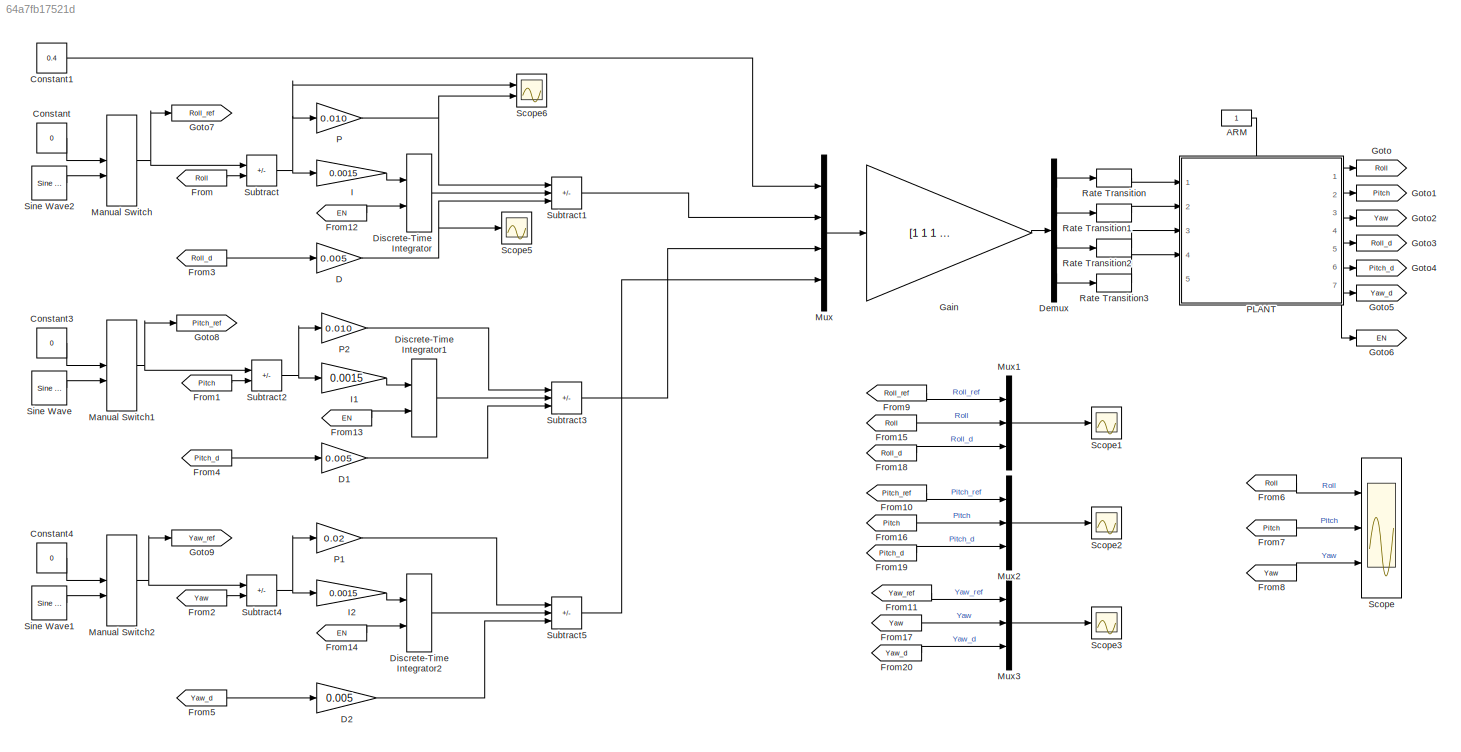
MODEL slx_64a7fb17521d
KIND model
CONFIG AbsTol = auto
CONFIG EnableMultiTasking = on
CONFIG FixedStep = auto
CONFIG MaxStep = auto
CONFIG MinStep = auto
CONFIG RelTol = 1e-3
CONFIG SampleTimeConstraint = Unconstrained
CONFIG SolverName = FixedStepAuto
CONFIG StartTime = 0.0
CONFIG StopTime = inf
BLOCK [Constant] ARM
  OutDataTypeStr = boolean
BLOCK [Constant] Constant
  SampleTime = 1/100
  Value = 0
BLOCK [Constant] Constant1
  SampleTime = 1/100
  Value = 0.4
BLOCK [Constant] Constant3
  SampleTime = 1/100
  Value = 0
BLOCK [Constant] Constant4
  SampleTime = 1/100
  Value = 0
BLOCK [Gain] D
  Gain = 0.005
BLOCK [Gain] D1
  Gain = 0.005
BLOCK [Gain] D2
  Gain = 0.005
BLOCK [Demux] Demux
  Ports = [1, 4]
BLOCK [DiscreteIntegrator] Discrete-Time Integrator
  ExternalReset = rising
  ICPrevOutput = DiscIntNeverNeededParam
  ICPrevScaledInput = DiscIntNeverNeededParam
  InitialConditionSetting = Auto
  Ports = [2, 1]
  SampleTime = -1
BLOCK [DiscreteIntegrator] Discrete-Time Integrator1
  ExternalReset = rising
  ICPrevOutput = DiscIntNeverNeededParam
  ICPrevScaledInput = DiscIntNeverNeededParam
  InitialConditionSetting = Auto
  Ports = [2, 1]
  SampleTime = -1
BLOCK [DiscreteIntegrator] Discrete-Time Integrator2
  ExternalReset = rising
  ICPrevOutput = DiscIntNeverNeededParam
  ICPrevScaledInput = DiscIntNeverNeededParam
  InitialConditionSetting = Auto
  Ports = [2, 1]
  SampleTime = -1
BLOCK [From] From
  GotoTag = Roll
BLOCK [From] From1
  GotoTag = Pitch
BLOCK [From] From10
  GotoTag = Pitch_ref
BLOCK [From] From11
  GotoTag = Yaw_ref
BLOCK [From] From12
  GotoTag = EN
BLOCK [From] From13
  GotoTag = EN
BLOCK [From] From14
  GotoTag = EN
BLOCK [From] From15
  GotoTag = Roll
BLOCK [From] From16
  GotoTag = Pitch
BLOCK [From] From17
  GotoTag = Yaw
BLOCK [From] From18
  GotoTag = Roll_d
BLOCK [From] From19
  GotoTag = Pitch_d
BLOCK [From] From2
  GotoTag = Yaw
BLOCK [From] From20
  GotoTag = Yaw_d
BLOCK [From] From3
  GotoTag = Roll_d
BLOCK [From] From4
  GotoTag = Pitch_d
BLOCK [From] From5
  GotoTag = Yaw_d
BLOCK [From] From6
  GotoTag = Roll
BLOCK [From] From7
  GotoTag = Pitch
BLOCK [From] From8
  GotoTag = Yaw
BLOCK [From] From9
  GotoTag = Roll_ref
BLOCK [Gain] Gain
  Gain = [1 1 1 1;  1 -1 -1 1; 1 1 -1 -1; -1 1 -1 1]'
  Multiplication = Matrix(K*u)
BLOCK [Goto] Goto
  GotoTag = Roll
BLOCK [Goto] Goto1
  GotoTag = Pitch
BLOCK [Goto] Goto2
  GotoTag = Yaw
BLOCK [Goto] Goto3
  GotoTag = Roll_d
BLOCK [Goto] Goto4
  GotoTag = Pitch_d
BLOCK [Goto] Goto5
  GotoTag = Yaw_d
BLOCK [Goto] Goto6
  GotoTag = EN
BLOCK [Goto] Goto7
  GotoTag = Roll_ref
BLOCK [Goto] Goto8
  GotoTag = Pitch_ref
BLOCK [Goto] Goto9
  GotoTag = Yaw_ref
BLOCK [Gain] I
  Gain = 0.0015
BLOCK [Gain] I1
  Gain = 0.0015
BLOCK [Gain] I2
  Gain = 0.0015
BLOCK [ManualSwitch] Manual Switch
BLOCK [ManualSwitch] Manual Switch1
BLOCK [ManualSwitch] Manual Switch2
BLOCK [Mux] Mux
  DisplayOption = bar
  Ports = [4, 1]
BLOCK [Mux] Mux1
  DisplayOption = bar
  Inputs = 3
  Ports = [3, 1]
BLOCK [Mux] Mux2
  DisplayOption = bar
  Inputs = 3
  Ports = [3, 1]
BLOCK [Mux] Mux3
  DisplayOption = bar
  Inputs = 3
  Ports = [3, 1]
BLOCK [Gain] P
  Gain = 0.010
BLOCK [Gain] P1
  Gain = 0.02
BLOCK [Gain] P2
  Gain = 0.010
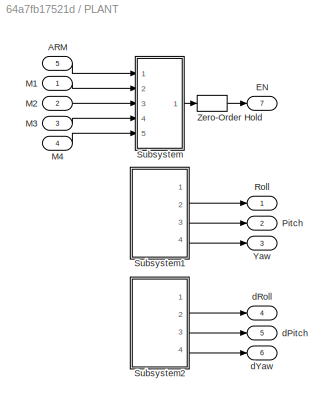
BLOCK [SubSystem] PLANT
  PortSchema = {"entries":[{"content":{"sides":[{"content":{"connectorIds":["In1","In2","In3","In4"]},"type":"ConnectorPlacement.EquallySpacedRectSide","uuid":"0819245d-16ff-4e8e-bda0-1b474f684948"},{"content":{"connectorIds":["Out1","Out2","Out3","Out4","Out5","Out6"],"side":"RIGHT"},"type":"ConnectorPlacement.EquallySpacedRectSide","uuid":"5623580e-83d4-444f-b3d8-3c3f4916fe9f"},{"content":{"connectorIds":["In5...<+592ch>
  Ports = [5, 7]
  RequestExecContextInheritance = off
BLOCK [Inport] PLANT/ARM
  NameLocation = left
  Port = 5
BLOCK [Outport] PLANT/EN
  NameLocation = right
  Port = 7
BLOCK [Inport] PLANT/M1
  NameLocation = left
BLOCK [Inport] PLANT/M2
  NameLocation = left
  Port = 2
BLOCK [Inport] PLANT/M3
  NameLocation = left
  Port = 3
BLOCK [Inport] PLANT/M4
  NameLocation = left
  Port = 4
BLOCK [Outport] PLANT/Pitch
  NameLocation = right
  Port = 2
BLOCK [Outport] PLANT/Roll
  NameLocation = right
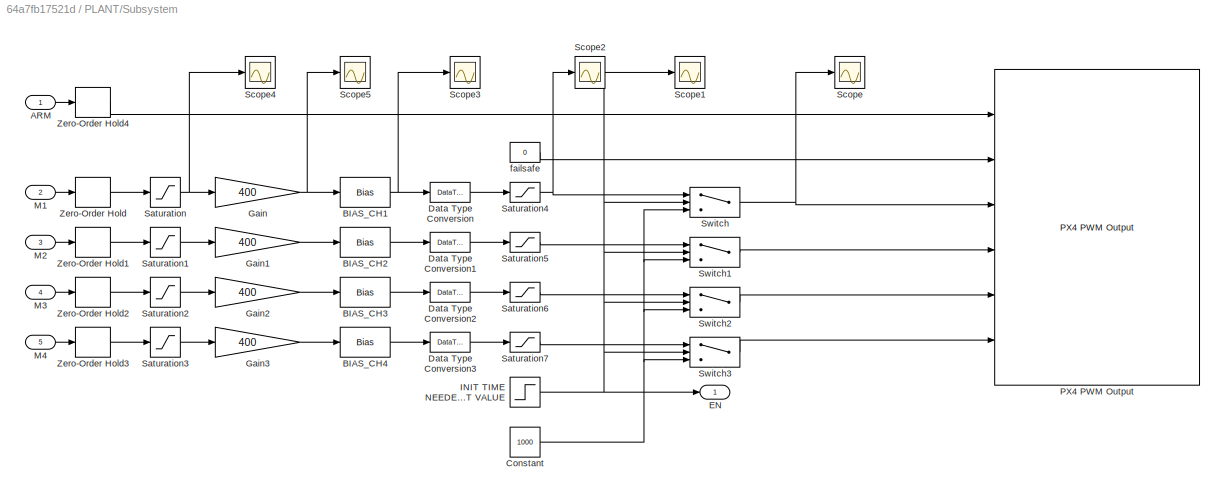
BLOCK [SubSystem] PLANT/Subsystem
  Ports = [5, 1]
  RequestExecContextInheritance = off
BLOCK [Inport] PLANT/Subsystem/ARM
BLOCK [Bias] PLANT/Subsystem/BIAS_CH1
  Bias = 1060
  SaturateOnIntegerOverflow = off
BLOCK [Bias] PLANT/Subsystem/BIAS_CH2
  Bias = 1060
  SaturateOnIntegerOverflow = off
BLOCK [Bias] PLANT/Subsystem/BIAS_CH3
  Bias = 1060
  SaturateOnIntegerOverflow = off
BLOCK [Bias] PLANT/Subsystem/BIAS_CH4
  Bias = 1060
  SaturateOnIntegerOverflow = off
BLOCK [Constant] PLANT/Subsystem/Constant
  OutDataTypeStr = uint16
  SampleTime = 1/400
  Value = 1000
BLOCK [DataTypeConversion] PLANT/Subsystem/Data Type Conversion
  OutDataTypeStr = uint16
  RndMeth = Floor
  SaturateOnIntegerOverflow = off
BLOCK [DataTypeConversion] PLANT/Subsystem/Data Type Conversion1
  OutDataTypeStr = uint16
  RndMeth = Floor
  SaturateOnIntegerOverflow = off
BLOCK [DataTypeConversion] PLANT/Subsystem/Data Type Conversion2
  OutDataTypeStr = uint16
  RndMeth = Floor
  SaturateOnIntegerOverflow = off
BLOCK [DataTypeConversion] PLANT/Subsystem/Data Type Conversion3
  OutDataTypeStr = uint16
  RndMeth = Floor
  SaturateOnIntegerOverflow = off
BLOCK [Outport] PLANT/Subsystem/EN
BLOCK [Gain] PLANT/Subsystem/Gain
  Gain = 400
BLOCK [Gain] PLANT/Subsystem/Gain1
  Gain = 400
BLOCK [Gain] PLANT/Subsystem/Gain2
  Gain = 400
BLOCK [Gain] PLANT/Subsystem/Gain3
  Gain = 400
BLOCK [Step] PLANT/Subsystem/INIT TIME NEEDED AT LOWEST VALUE
  SampleTime = 1/400
  Time = 20
BLOCK [Inport] PLANT/Subsystem/M1
  Port = 2
BLOCK [Inport] PLANT/Subsystem/M2
  Port = 3
BLOCK [Inport] PLANT/Subsystem/M3
  Port = 4
BLOCK [Inport] PLANT/Subsystem/M4
  Port = 5
BLOCK [Reference] PLANT/Subsystem/PX4 PWM Output  REF=px4lib/PX4 PWM Output
  Ports = [6]
  SourceBlock = px4lib/PX4 PWM Output
  SourceProductBaseCode = PX4AUTOPILOTS
  SourceType = PX4 PWM Output
BLOCK [Saturate] PLANT/Subsystem/Saturation
  LowerLimit = 0
  UpperLimit = 1
BLOCK [Saturate] PLANT/Subsystem/Saturation1
  LowerLimit = 0
  UpperLimit = 1
BLOCK [Saturate] PLANT/Subsystem/Saturation2
  LowerLimit = 0
  UpperLimit = 1
BLOCK [Saturate] PLANT/Subsystem/Saturation3
  LowerLimit = 0
  UpperLimit = 1
BLOCK [Saturate] PLANT/Subsystem/Saturation4
  LowerLimit = 1000
  UpperLimit = 1460
BLOCK [Saturate] PLANT/Subsystem/Saturation5
  LowerLimit = 1000
  UpperLimit = 1460
BLOCK [Saturate] PLANT/Subsystem/Saturation6
  LowerLimit = 1000
  UpperLimit = 1460
BLOCK [Saturate] PLANT/Subsystem/Saturation7
  LowerLimit = 1000
  UpperLimit = 1460
BLOCK [Scope] PLANT/Subsystem/Scope
  Commented = on
  Floating = off
  NumInputPorts = 1
  Ports = [1]
  ScopeSpecificationString = Simulink.scopes.TimeScopeBlockCfg('CurrentConfiguration', extmgr.ConfigurationSet(extmgr.Configuration('Core','General UI',true),extmgr.Configuration('Core','Source UI',true),extmgr.Configuration('Sources','WiredSimulink',true,'DataLoggingVariableName','ScopeData2'),extmgr.Configuration('Visuals','Time Domain',true,'SerializedDisplays',{struct('MinYLimReal','900.00000','MaxYLimReal','1100.00000','...<+1437ch>
BLOCK [Scope] PLANT/Subsystem/Scope1
  Commented = on
  Floating = off
  NumInputPorts = 1
  Ports = [1]
  ScopeSpecificationString = Simulink.scopes.TimeScopeBlockCfg('CurrentConfiguration', extmgr.ConfigurationSet(extmgr.Configuration('Core','General UI',true),extmgr.Configuration('Core','Source UI',true),extmgr.Configuration('Sources','WiredSimulink',true,'DataLoggingVariableName','ScopeData3'),extmgr.Configuration('Visuals','Time Domain',true,'SerializedDisplays',{struct('MinYLimReal','900.00000','MaxYLimReal','1100.00000','...<+1463ch>
BLOCK [Scope] PLANT/Subsystem/Scope2
  Commented = on
  Floating = off
  NumInputPorts = 1
  Ports = [1]
  ScopeSpecificationString = Simulink.scopes.TimeScopeBlockCfg('CurrentConfiguration', extmgr.ConfigurationSet(extmgr.Configuration('Core','General UI',true),extmgr.Configuration('Core','Source UI',true),extmgr.Configuration('Sources','WiredSimulink',true,'DataLoggingVariableName','ScopeData4'),extmgr.Configuration('Visuals','Time Domain',true,'SerializedDisplays',{struct('MinYLimReal','900.00000','MaxYLimReal','1100.00000','...<+1442ch>
BLOCK [Scope] PLANT/Subsystem/Scope3
  Commented = on
  Floating = off
  NumInputPorts = 1
  Ports = [1]
  ScopeSpecificationString = Simulink.scopes.TimeScopeBlockCfg('CurrentConfiguration', extmgr.ConfigurationSet(extmgr.Configuration('Core','General UI',true),extmgr.Configuration('Core','Source UI',true),extmgr.Configuration('Sources','WiredSimulink',true,'DataLoggingVariableName','ScopeData5'),extmgr.Configuration('Visuals','Time Domain',true,'SerializedDisplays',{struct('MinYLimReal','900.00000','MaxYLimReal','1100.00000','...<+1439ch>
BLOCK [Scope] PLANT/Subsystem/Scope4
  Commented = on
  Floating = off
  NumInputPorts = 1
  Ports = [1]
  ScopeSpecificationString = Simulink.scopes.TimeScopeBlockCfg('CurrentConfiguration', extmgr.ConfigurationSet(extmgr.Configuration('Core','General UI',true),extmgr.Configuration('Core','Source UI',true),extmgr.Configuration('Sources','WiredSimulink',true,'DataLoggingVariableName','ScopeData6'),extmgr.Configuration('Visuals','Time Domain',true,'SerializedDisplays',{struct('MinYLimReal','900.00000','MaxYLimReal','1100.00000','...<+1441ch>
BLOCK [Scope] PLANT/Subsystem/Scope5
  Commented = on
  Floating = off
  NumInputPorts = 1
  Ports = [1]
  ScopeSpecificationString = Simulink.scopes.TimeScopeBlockCfg('CurrentConfiguration', extmgr.ConfigurationSet(extmgr.Configuration('Core','General UI',true),extmgr.Configuration('Core','Source UI',true),extmgr.Configuration('Sources','WiredSimulink',true,'DataLoggingVariableName','ScopeData7'),extmgr.Configuration('Visuals','Time Domain',true,'SerializedDisplays',{struct('MinYLimReal','900.00000','MaxYLimReal','1100.00000','...<+1435ch>
BLOCK [Switch] PLANT/Subsystem/Switch
  Criteria = u2 > Threshold
  InputSameDT = off
  SaturateOnIntegerOverflow = off
BLOCK [Switch] PLANT/Subsystem/Switch1
  Criteria = u2 > Threshold
  InputSameDT = off
  SaturateOnIntegerOverflow = off
BLOCK [Switch] PLANT/Subsystem/Switch2
  Criteria = u2 > Threshold
  InputSameDT = off
  SaturateOnIntegerOverflow = off
BLOCK [Switch] PLANT/Subsystem/Switch3
  Criteria = u2 > Threshold
  InputSameDT = off
  SaturateOnIntegerOverflow = off
BLOCK [ZeroOrderHold] PLANT/Subsystem/Zero-Order Hold
  SampleTime = 1/400
BLOCK [ZeroOrderHold] PLANT/Subsystem/Zero-Order Hold1
  SampleTime = 1/400
BLOCK [ZeroOrderHold] PLANT/Subsystem/Zero-Order Hold2
  SampleTime = 1/400
BLOCK [ZeroOrderHold] PLANT/Subsystem/Zero-Order Hold3
  SampleTime = 1/400
BLOCK [ZeroOrderHold] PLANT/Subsystem/Zero-Order Hold4
  SampleTime = 1/400
BLOCK [Constant] PLANT/Subsystem/failsafe
  OutDataTypeStr = boolean
  SampleTime = 1/400
  Value = 0
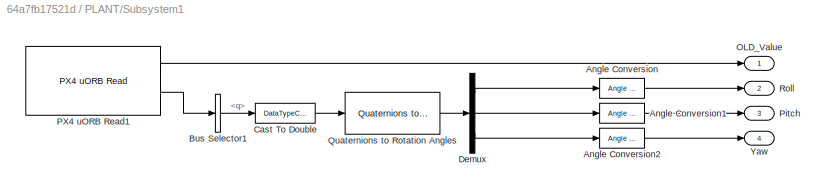
BLOCK [SubSystem] PLANT/Subsystem1
  Ports = [0, 4]
  RequestExecContextInheritance = off
BLOCK [Reference] PLANT/Subsystem1/Angle Conversion  REF=aerolibconvert2/Angle Conversion
  Ports = [1, 1]
  SourceBlock = aerolibconvert2/Angle Conversion
  SourceProductBaseCode = AE
  SourceType = Angle Conversion
BLOCK [Reference] PLANT/Subsystem1/Angle Conversion1  REF=aerolibconvert2/Angle Conversion
  Ports = [1, 1]
  SourceBlock = aerolibconvert2/Angle Conversion
  SourceProductBaseCode = AE
  SourceType = Angle Conversion
BLOCK [Reference] PLANT/Subsystem1/Angle Conversion2  REF=aerolibconvert2/Angle Conversion
  Ports = [1, 1]
  SourceBlock = aerolibconvert2/Angle Conversion
  SourceProductBaseCode = AE
  SourceType = Angle Conversion
BLOCK [BusSelector] PLANT/Subsystem1/Bus Selector1
  OutputSignals = q
  Ports = [1, 1]
BLOCK [DataTypeConversion] PLANT/Subsystem1/Cast To Double
  OutDataTypeStr = double
  RndMeth = Floor
  SaturateOnIntegerOverflow = off
BLOCK [Demux] PLANT/Subsystem1/Demux
  Outputs = 3
  Ports = [1, 3]
BLOCK [Outport] PLANT/Subsystem1/OLD_Value
  NameLocation = right
BLOCK [Reference] PLANT/Subsystem1/PX4 uORB Read1  REF=px4uORBlib/PX4 uORB Read
  Ports = [0, 2]
  SourceBlock = px4uORBlib/PX4 uORB Read
  SourceProductBaseCode = PX4AUTOPILOTS
  SourceType = PX4 uORB Read
BLOCK [Outport] PLANT/Subsystem1/Pitch
  NameLocation = right
  Port = 3
BLOCK [Reference] PLANT/Subsystem1/Quaternions to Rotation Angles  REF=sharedtransform/Quaternions to Rotation Angles
  AttributesFormatString = Rotation Order: %<rotationOrder>
  Ports = [1, 1]
  SourceBlock = sharedtransform/Quaternions to Rotation Angles
  SourceProductBaseCode = AE,PW,MT,UV,VE,VP
  SourceType = Quat2Ang
BLOCK [Outport] PLANT/Subsystem1/Roll
  NameLocation = right
  Port = 2
BLOCK [Outport] PLANT/Subsystem1/Yaw
  NameLocation = right
  Port = 4
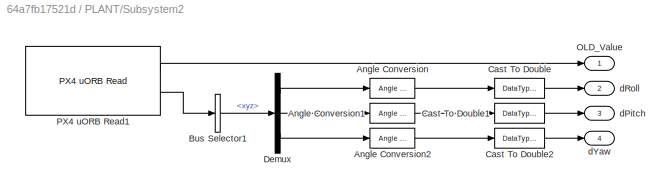
BLOCK [SubSystem] PLANT/Subsystem2
  Ports = [0, 4]
  RequestExecContextInheritance = off
BLOCK [Reference] PLANT/Subsystem2/Angle Conversion  REF=aerolibconvert2/Angle Conversion
  Ports = [1, 1]
  SourceBlock = aerolibconvert2/Angle Conversion
  SourceProductBaseCode = AE
  SourceType = Angle Conversion
BLOCK [Reference] PLANT/Subsystem2/Angle Conversion1  REF=aerolibconvert2/Angle Conversion
  Ports = [1, 1]
  SourceBlock = aerolibconvert2/Angle Conversion
  SourceProductBaseCode = AE
  SourceType = Angle Conversion
BLOCK [Reference] PLANT/Subsystem2/Angle Conversion2  REF=aerolibconvert2/Angle Conversion
  Ports = [1, 1]
  SourceBlock = aerolibconvert2/Angle Conversion
  SourceProductBaseCode = AE
  SourceType = Angle Conversion
BLOCK [BusSelector] PLANT/Subsystem2/Bus Selector1
  OutputSignals = xyz
  Ports = [1, 1]
BLOCK [DataTypeConversion] PLANT/Subsystem2/Cast To Double
  OutDataTypeStr = double
  RndMeth = Floor
  SaturateOnIntegerOverflow = off
BLOCK [DataTypeConversion] PLANT/Subsystem2/Cast To Double1
  OutDataTypeStr = double
  RndMeth = Floor
  SaturateOnIntegerOverflow = off
BLOCK [DataTypeConversion] PLANT/Subsystem2/Cast To Double2
  OutDataTypeStr = double
  RndMeth = Floor
  SaturateOnIntegerOverflow = off
BLOCK [Demux] PLANT/Subsystem2/Demux
  Outputs = 3
  Ports = [1, 3]
BLOCK [Outport] PLANT/Subsystem2/OLD_Value
  NameLocation = right
BLOCK [Reference] PLANT/Subsystem2/PX4 uORB Read1  REF=px4uORBlib/PX4 uORB Read
  Ports = [0, 2]
  SourceBlock = px4uORBlib/PX4 uORB Read
  SourceProductBaseCode = PX4AUTOPILOTS
  SourceType = PX4 uORB Read
BLOCK [Outport] PLANT/Subsystem2/dPitch
  NameLocation = right
  Port = 3
BLOCK [Outport] PLANT/Subsystem2/dRoll
  NameLocation = right
  Port = 2
BLOCK [Outport] PLANT/Subsystem2/dYaw
  NameLocation = right
  Port = 4
BLOCK [Outport] PLANT/Yaw
  NameLocation = right
  Port = 3
BLOCK [ZeroOrderHold] PLANT/Zero-Order Hold
  SampleTime = 1/100
BLOCK [Outport] PLANT/dPitch
  NameLocation = right
  Port = 5
BLOCK [Outport] PLANT/dRoll
  NameLocation = right
  Port = 4
BLOCK [Outport] PLANT/dYaw
  NameLocation = right
  Port = 6
BLOCK [RateTransition] Rate Transition
BLOCK [RateTransition] Rate Transition1
BLOCK [RateTransition] Rate Transition2
BLOCK [RateTransition] Rate Transition3
BLOCK [Scope] Scope
  Floating = off
  NumInputPorts = 3
  Ports = [3]
  ScopeSpecificationString = Simulink.scopes.TimeScopeBlockCfg('CurrentConfiguration', extmgr.ConfigurationSet(extmgr.Configuration('Core','General UI',true),extmgr.Configuration('Core','Source UI',true),extmgr.Configuration('Sources','WiredSimulink',true),extmgr.Configuration('Visuals','Time Domain',true,'SerializedDisplays',{struct('MinYLimReal','-2.55075','MaxYLimReal','3.35444','YLabelReal','','MinYLimMag','0.00000','MaxY...<+1549ch>
BLOCK [Scope] Scope1
  Floating = off
  NumInputPorts = 1
  Ports = [1]
  ScopeSpecificationString = Simulink.scopes.TimeScopeBlockCfg('CurrentConfiguration', extmgr.ConfigurationSet(extmgr.Configuration('Core','General UI',true),extmgr.Configuration('Core','Source UI',true),extmgr.Configuration('Sources','WiredSimulink',true,'DataLoggingVariableName','ScopeData1'),extmgr.Configuration('Visuals','Time Domain',true,'SerializedDisplays',{struct('MinYLimReal','-114.59287','MaxYLimReal','100.39356','...<+1562ch>
BLOCK [Scope] Scope2
  Floating = off
  NumInputPorts = 1
  Ports = [1]
  ScopeSpecificationString = Simulink.scopes.TimeScopeBlockCfg('CurrentConfiguration', extmgr.ConfigurationSet(extmgr.Configuration('Core','General UI',true),extmgr.Configuration('Core','Source UI',true),extmgr.Configuration('Sources','WiredSimulink',true,'DataLoggingVariableName','ScopeData1'),extmgr.Configuration('Visuals','Time Domain',true,'SerializedDisplays',{struct('MinYLimReal','-112.78389','MaxYLimReal','89.23328','Y...<+1563ch>
BLOCK [Scope] Scope3
  Floating = off
  NumInputPorts = 1
  Ports = [1]
  ScopeSpecificationString = Simulink.scopes.TimeScopeBlockCfg('CurrentConfiguration', extmgr.ConfigurationSet(extmgr.Configuration('Core','General UI',true),extmgr.Configuration('Core','Source UI',true),extmgr.Configuration('Sources','WiredSimulink',true,'DataLoggingVariableName','ScopeData2'),extmgr.Configuration('Visuals','Time Domain',true,'SerializedDisplays',{struct('MinYLimReal','-138.79829','MaxYLimReal','171.33897','...<+1559ch>
BLOCK [Scope] Scope5
  Floating = off
  NumInputPorts = 1
  Ports = [1]
  ScopeSpecificationString = Simulink.scopes.TimeScopeBlockCfg('CurrentConfiguration', extmgr.ConfigurationSet(extmgr.Configuration('Core','General UI',true),extmgr.Configuration('Core','Source UI',true),extmgr.Configuration('Sources','WiredSimulink',true,'DataLoggingVariableName','ScopeData10'),extmgr.Configuration('Visuals','Time Domain',true,'SerializedDisplays',{struct('MinYLimReal','-0.03729','MaxYLimReal','0.03812','YLa...<+1386ch>
BLOCK [Scope] Scope6
  Floating = off
  NumInputPorts = 2
  Ports = [2]
  ScopeSpecificationString = Simulink.scopes.TimeScopeBlockCfg('CurrentConfiguration', extmgr.ConfigurationSet(extmgr.Configuration('Core','General UI',true),extmgr.Configuration('Core','Source UI',true),extmgr.Configuration('Sources','WiredSimulink',true,'DataLoggingVariableName','ScopeData11'),extmgr.Configuration('Visuals','Time Domain',true,'SerializedDisplays',{struct('MinYLimReal','-0.48427','MaxYLimReal','-0.14311','YL...<+1447ch>
BLOCK [Reference] Sine Wave  REF=dspsrcs4/Sine Wave
  Ports = [0, 1]
  SourceBlock = dspsrcs4/Sine Wave
  SourceProductName = DSP System Toolbox
  SourceType = Sine Wave
BLOCK [Reference] Sine Wave1  REF=dspsrcs4/Sine Wave
  Ports = [0, 1]
  SourceBlock = dspsrcs4/Sine Wave
  SourceProductName = DSP System Toolbox
  SourceType = Sine Wave
BLOCK [Reference] Sine Wave2  REF=dspsrcs4/Sine Wave
  Ports = [0, 1]
  SourceBlock = dspsrcs4/Sine Wave
  SourceProductName = DSP System Toolbox
  SourceType = Sine Wave
BLOCK [Sum] Subtract
  IconShape = rectangular
  Inputs = +-
  Ports = [2, 1]
BLOCK [Sum] Subtract1
  IconShape = rectangular
  Inputs = ++-
  Ports = [3, 1]
BLOCK [Sum] Subtract2
  IconShape = rectangular
  Inputs = +-
  Ports = [2, 1]
BLOCK [Sum] Subtract3
  IconShape = rectangular
  Inputs = ++-
  Ports = [3, 1]
BLOCK [Sum] Subtract4
  IconShape = rectangular
  Inputs = +-
  Ports = [2, 1]
BLOCK [Sum] Subtract5
  IconShape = rectangular
  Inputs = ++-
  Ports = [3, 1]
LINE ARM:1 -> PLANT:5
LINE Constant1:1 -> Mux:1
LINE Constant3:1 -> Manual Switch1:1
LINE Constant4:1 -> Manual Switch2:1
LINE Constant:1 -> Manual Switch:1
LINE D1:1 -> Subtract3:3
LINE D2:1 -> Subtract5:3
NET D:1 -> Scope5:1, Subtract1:3
LINE Demux:1 -> Rate Transition:1
LINE Demux:2 -> Rate Transition1:1
LINE Demux:3 -> Rate Transition2:1
LINE Demux:4 -> Rate Transition3:1
LINE Discrete-Time Integrator1:1 -> Subtract3:2
LINE Discrete-Time Integrator2:1 -> Subtract5:2
LINE Discrete-Time Integrator:1 -> Subtract1:2
LINE From10:1 -> Mux2:1
LINE From11:1 -> Mux3:1
LINE From12:1 -> Discrete-Time Integrator:2
LINE From13:1 -> Discrete-Time Integrator1:2
LINE From14:1 -> Discrete-Time Integrator2:2
LINE From15:1 -> Mux1:2
LINE From16:1 -> Mux2:2
LINE From17:1 -> Mux3:2
LINE From18:1 -> Mux1:3
LINE From19:1 -> Mux2:3
LINE From1:1 -> Subtract2:2
LINE From20:1 -> Mux3:3
LINE From2:1 -> Subtract4:2
LINE From3:1 -> D:1
LINE From4:1 -> D1:1
LINE From5:1 -> D2:1
LINE From6:1 -> Scope:1
LINE From7:1 -> Scope:2
LINE From8:1 -> Scope:3
LINE From9:1 -> Mux1:1
LINE From:1 -> Subtract:2
LINE Gain:1 -> Demux:1
LINE I1:1 -> Discrete-Time Integrator1:1
LINE I2:1 -> Discrete-Time Integrator2:1
LINE I:1 -> Discrete-Time Integrator:1
NET Manual Switch1:1 -> Goto8:1, Subtract2:1
NET Manual Switch2:1 -> Goto9:1, Subtract4:1
NET Manual Switch:1 -> Goto7:1, Subtract:1
LINE Mux1:1 -> Scope1:1
LINE Mux2:1 -> Scope2:1
LINE Mux3:1 -> Scope3:1
LINE Mux:1 -> Gain:1
LINE P1:1 -> Subtract5:1
LINE P2:1 -> Subtract3:1
NET P:1 -> Scope6:2, Subtract1:1
LINE PLANT/ARM:1 -> PLANT/Subsystem:1
LINE PLANT/M1:1 -> PLANT/Subsystem:2
LINE PLANT/M2:1 -> PLANT/Subsystem:3
LINE PLANT/M3:1 -> PLANT/Subsystem:4
LINE PLANT/M4:1 -> PLANT/Subsystem:5
LINE PLANT/Subsystem/ARM:1 -> PLANT/Subsystem/Zero-Order Hold4:1
NET PLANT/Subsystem/BIAS_CH1:1 -> PLANT/Subsystem/Data Type Conversion:1, PLANT/Subsystem/Scope3:1
LINE PLANT/Subsystem/BIAS_CH2:1 -> PLANT/Subsystem/Data Type Conversion1:1
LINE PLANT/Subsystem/BIAS_CH3:1 -> PLANT/Subsystem/Data Type Conversion2:1
LINE PLANT/Subsystem/BIAS_CH4:1 -> PLANT/Subsystem/Data Type Conversion3:1
NET PLANT/Subsystem/Constant:1 -> PLANT/Subsystem/Switch1:3, PLANT/Subsystem/Switch2:3, PLANT/Subsystem/Switch3:3, PLANT/Subsystem/Switch:3
LINE PLANT/Subsystem/Data Type Conversion1:1 -> PLANT/Subsystem/Saturation5:1
LINE PLANT/Subsystem/Data Type Conversion2:1 -> PLANT/Subsystem/Saturation6:1
LINE PLANT/Subsystem/Data Type Conversion3:1 -> PLANT/Subsystem/Saturation7:1
LINE PLANT/Subsystem/Data Type Conversion:1 -> PLANT/Subsystem/Saturation4:1
LINE PLANT/Subsystem/Gain1:1 -> PLANT/Subsystem/BIAS_CH2:1
LINE PLANT/Subsystem/Gain2:1 -> PLANT/Subsystem/BIAS_CH3:1
LINE PLANT/Subsystem/Gain3:1 -> PLANT/Subsystem/BIAS_CH4:1
NET PLANT/Subsystem/Gain:1 -> PLANT/Subsystem/BIAS_CH1:1, PLANT/Subsystem/Scope5:1
NET PLANT/Subsystem/INIT TIME NEEDED AT LOWEST VALUE:1 -> PLANT/Subsystem/EN:1, PLANT/Subsystem/Scope1:1, PLANT/Subsystem/Switch1:2, PLANT/Subsystem/Switch2:2, PLANT/Subsystem/Switch3:2, PLANT/Subsystem/Switch:2
LINE PLANT/Subsystem/M1:1 -> PLANT/Subsystem/Zero-Order Hold:1
LINE PLANT/Subsystem/M2:1 -> PLANT/Subsystem/Zero-Order Hold1:1
LINE PLANT/Subsystem/M3:1 -> PLANT/Subsystem/Zero-Order Hold2:1
LINE PLANT/Subsystem/M4:1 -> PLANT/Subsystem/Zero-Order Hold3:1
LINE PLANT/Subsystem/Saturation1:1 -> PLANT/Subsystem/Gain1:1
LINE PLANT/Subsystem/Saturation2:1 -> PLANT/Subsystem/Gain2:1
LINE PLANT/Subsystem/Saturation3:1 -> PLANT/Subsystem/Gain3:1
NET PLANT/Subsystem/Saturation4:1 -> PLANT/Subsystem/Scope2:1, PLANT/Subsystem/Switch:1
LINE PLANT/Subsystem/Saturation5:1 -> PLANT/Subsystem/Switch1:1
LINE PLANT/Subsystem/Saturation6:1 -> PLANT/Subsystem/Switch2:1
LINE PLANT/Subsystem/Saturation7:1 -> PLANT/Subsystem/Switch3:1
NET PLANT/Subsystem/Saturation:1 -> PLANT/Subsystem/Gain:1, PLANT/Subsystem/Scope4:1
LINE PLANT/Subsystem/Switch1:1 -> PLANT/Subsystem/PX4 PWM Output:4
LINE PLANT/Subsystem/Switch2:1 -> PLANT/Subsystem/PX4 PWM Output:5
LINE PLANT/Subsystem/Switch3:1 -> PLANT/Subsystem/PX4 PWM Output:6
NET PLANT/Subsystem/Switch:1 -> PLANT/Subsystem/PX4 PWM Output:3, PLANT/Subsystem/Scope:1
LINE PLANT/Subsystem/Zero-Order Hold1:1 -> PLANT/Subsystem/Saturation1:1
LINE PLANT/Subsystem/Zero-Order Hold2:1 -> PLANT/Subsystem/Saturation2:1
LINE PLANT/Subsystem/Zero-Order Hold3:1 -> PLANT/Subsystem/Saturation3:1
LINE PLANT/Subsystem/Zero-Order Hold4:1 -> PLANT/Subsystem/PX4 PWM Output:1
LINE PLANT/Subsystem/Zero-Order Hold:1 -> PLANT/Subsystem/Saturation:1
LINE PLANT/Subsystem/failsafe:1 -> PLANT/Subsystem/PX4 PWM Output:2
LINE PLANT/Subsystem1/Angle Conversion1:1 -> PLANT/Subsystem1/Pitch:1
LINE PLANT/Subsystem1/Angle Conversion2:1 -> PLANT/Subsystem1/Yaw:1
LINE PLANT/Subsystem1/Angle Conversion:1 -> PLANT/Subsystem1/Roll:1
LINE PLANT/Subsystem1/Bus Selector1:1 -> PLANT/Subsystem1/Cast To Double:1
LINE PLANT/Subsystem1/Cast To Double:1 -> PLANT/Subsystem1/Quaternions to Rotation Angles:1
LINE PLANT/Subsystem1/Demux:1 -> PLANT/Subsystem1/Angle Conversion:1
LINE PLANT/Subsystem1/Demux:2 -> PLANT/Subsystem1/Angle Conversion1:1
LINE PLANT/Subsystem1/Demux:3 -> PLANT/Subsystem1/Angle Conversion2:1
LINE PLANT/Subsystem1/PX4 uORB Read1:1 -> PLANT/Subsystem1/OLD_Value:1
LINE PLANT/Subsystem1/PX4 uORB Read1:2 -> PLANT/Subsystem1/Bus Selector1:1
LINE PLANT/Subsystem1/Quaternions to Rotation Angles:1 -> PLANT/Subsystem1/Demux:1
LINE PLANT/Subsystem1:2 -> PLANT/Roll:1
LINE PLANT/Subsystem1:3 -> PLANT/Pitch:1
LINE PLANT/Subsystem1:4 -> PLANT/Yaw:1
LINE PLANT/Subsystem2/Angle Conversion1:1 -> PLANT/Subsystem2/Cast To Double1:1
LINE PLANT/Subsystem2/Angle Conversion2:1 -> PLANT/Subsystem2/Cast To Double2:1
LINE PLANT/Subsystem2/Angle Conversion:1 -> PLANT/Subsystem2/Cast To Double:1
LINE PLANT/Subsystem2/Bus Selector1:1 -> PLANT/Subsystem2/Demux:1
LINE PLANT/Subsystem2/Cast To Double1:1 -> PLANT/Subsystem2/dPitch:1
LINE PLANT/Subsystem2/Cast To Double2:1 -> PLANT/Subsystem2/dYaw:1
LINE PLANT/Subsystem2/Cast To Double:1 -> PLANT/Subsystem2/dRoll:1
LINE PLANT/Subsystem2/Demux:1 -> PLANT/Subsystem2/Angle Conversion:1
LINE PLANT/Subsystem2/Demux:2 -> PLANT/Subsystem2/Angle Conversion1:1
LINE PLANT/Subsystem2/Demux:3 -> PLANT/Subsystem2/Angle Conversion2:1
LINE PLANT/Subsystem2/PX4 uORB Read1:1 -> PLANT/Subsystem2/OLD_Value:1
LINE PLANT/Subsystem2/PX4 uORB Read1:2 -> PLANT/Subsystem2/Bus Selector1:1
LINE PLANT/Subsystem2:2 -> PLANT/dRoll:1
LINE PLANT/Subsystem2:3 -> PLANT/dPitch:1
LINE PLANT/Subsystem2:4 -> PLANT/dYaw:1
LINE PLANT/Subsystem:1 -> PLANT/Zero-Order Hold:1
LINE PLANT/Zero-Order Hold:1 -> PLANT/EN:1
LINE PLANT:1 -> Goto:1
LINE PLANT:2 -> Goto1:1
LINE PLANT:3 -> Goto2:1
LINE PLANT:4 -> Goto3:1
LINE PLANT:5 -> Goto4:1
LINE PLANT:6 -> Goto5:1
LINE PLANT:7 -> Goto6:1
LINE Rate Transition1:1 -> PLANT:2
LINE Rate Transition2:1 -> PLANT:3
LINE Rate Transition3:1 -> PLANT:4
LINE Rate Transition:1 -> PLANT:1
LINE Sine Wave1:1 -> Manual Switch2:2
LINE Sine Wave2:1 -> Manual Switch:2
LINE Sine Wave:1 -> Manual Switch1:2
LINE Subtract1:1 -> Mux:2
NET Subtract2:1 -> I1:1, P2:1
LINE Subtract3:1 -> Mux:3
NET Subtract4:1 -> I2:1, P1:1
LINE Subtract5:1 -> Mux:4
NET Subtract:1 -> I:1, P:1, Scope6:1
note: NET lines group one-source signal fan-out (src -> all destinations, sorted); 1:1 wires keep LINE
